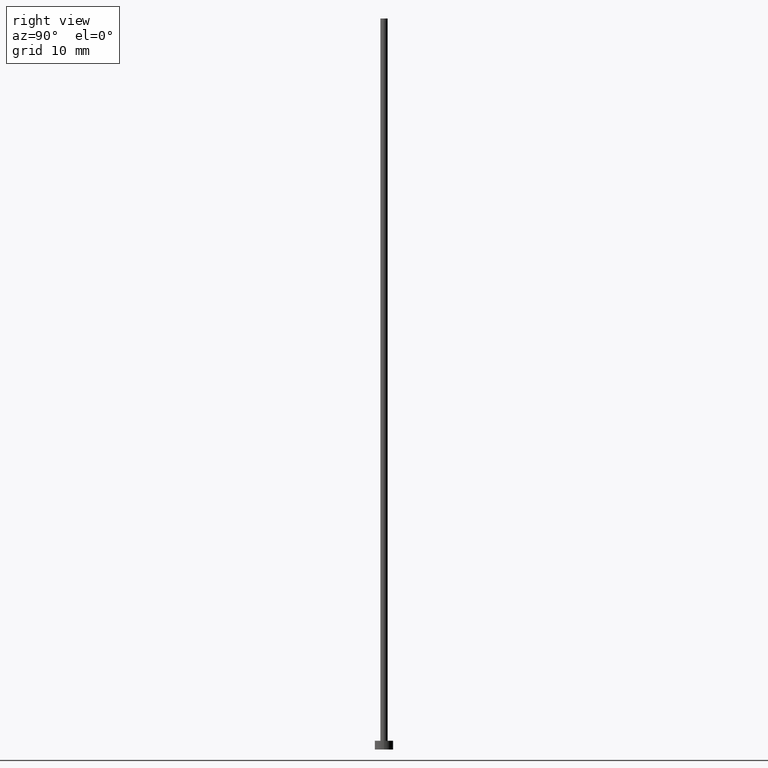
[diagram: clean part render]
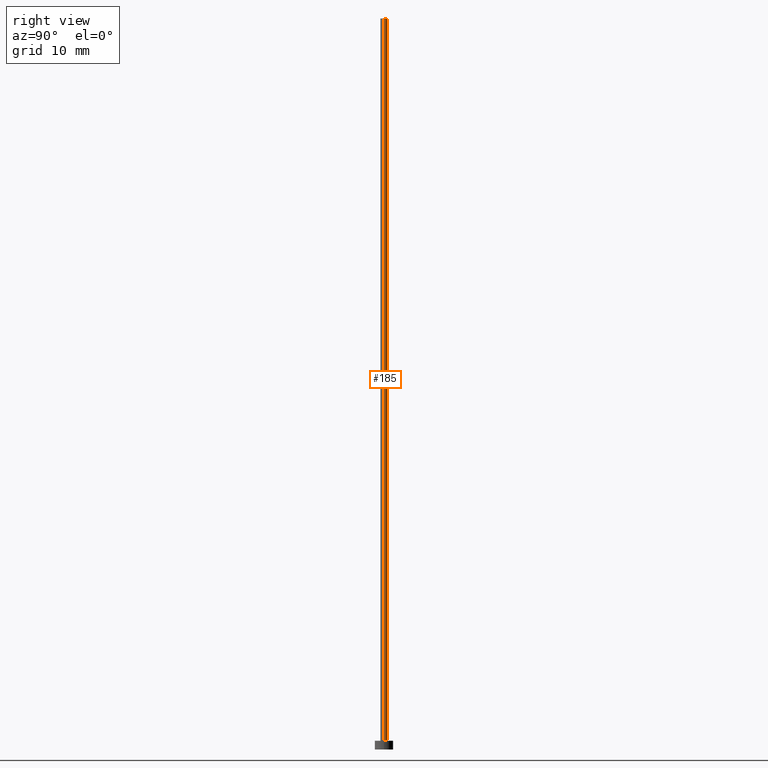
[diagram: same view with one face highlighted and labeled with its STEP entity id]
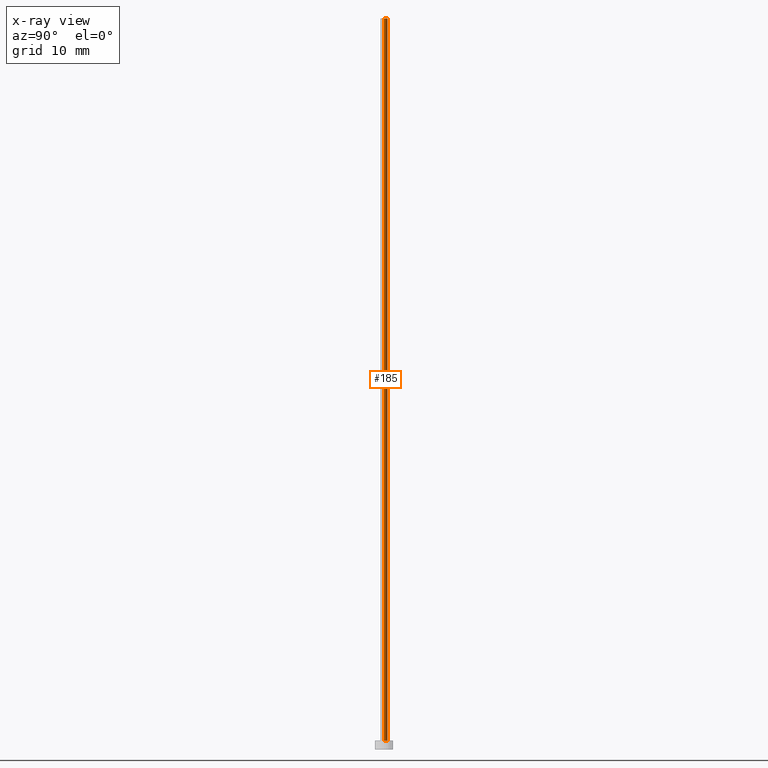
[diagram: x-ray of the same camera — body ghosted, the highlighted face saturated]
A machine part, right view. The second image highlights one B-rep face of the part: STEP entity #185.
The next image is the same camera in x-ray: the body ghosted, the highlighted face saturated — about 0% of this face is hidden behind the body in this view.
In plain terms, the highlighted cylindrical surface (edge-blend (fillet) strip) has radius 0.5 mm, axis along (-0, -0, -1).
Its self-contained STEP definition (entity closure, byte-faithful):
#2 = EDGE_CURVE ( 'NONE', #156, #240, #200, .T. ) ;
#3 = VERTEX_POINT ( 'NONE', #22 ) ;
#9 = AXIS2_PLACEMENT_3D ( 'NONE', #12, #166, #163 ) ;
#10 = DIRECTION ( 'NONE',  ( -1.000000000000000000, 0.000000000000000000, 0.000000000000000000 ) ) ;
#11 = CARTESIAN_POINT ( 'NONE',  ( 0.000000000000000000, 0.000000000000000000, 100.0000000000000000 ) ) ;
#12 = CARTESIAN_POINT ( 'NONE',  ( 0.000000000000000000, 0.000000000000000000, 100.0000000000000000 ) ) ;
#13 = CIRCLE ( 'NONE', #150, 0.5000000000000000000 ) ;
#22 = CARTESIAN_POINT ( 'NONE',  ( -0.5000000000000000000, 0.000000000000000000, 100.0000000000000000 ) ) ;
#31 = DIRECTION ( 'NONE',  ( 0.000000000000000000, 0.000000000000000000, 1.000000000000000000 ) ) ;
#40 = EDGE_CURVE ( 'NONE', #156, #3, #115, .T. ) ;
#54 = CYLINDRICAL_SURFACE ( 'NONE', #108, 0.5000000000000000000 ) ;
#67 = EDGE_CURVE ( 'NONE', #240, #215, #13, .T. ) ;
#73 = CARTESIAN_POINT ( 'NONE',  ( 0.5000000000000000000, 6.123233995736766036E-17, 1.199999999999999956 ) ) ;
#75 = VECTOR ( 'NONE', #183, 1000.000000000000000 ) ;
#88 = DIRECTION ( 'NONE',  ( 1.000000000000000000, 0.000000000000000000, 0.000000000000000000 ) ) ;
#105 = CARTESIAN_POINT ( 'NONE',  ( -0.5000000000000000000, 0.000000000000000000, 100.0000000000000000 ) ) ;
#108 = AXIS2_PLACEMENT_3D ( 'NONE', #11, #186, #10 ) ;
#115 = CIRCLE ( 'NONE', #9, 0.5000000000000000000 ) ;
#122 = EDGE_LOOP ( 'NONE', ( #218, #139, #237, #177 ) ) ;
#135 = CARTESIAN_POINT ( 'NONE',  ( 0.5000000000000000000, 6.123233995736766036E-17, 100.0000000000000000 ) ) ;
#139 = ORIENTED_EDGE ( 'NONE', *, *, #2, .T. ) ;
#143 = CARTESIAN_POINT ( 'NONE',  ( -0.5000000000000000000, 0.000000000000000000, 1.199999999999999956 ) ) ;
#150 = AXIS2_PLACEMENT_3D ( 'NONE', #180, #31, #88 ) ;
#155 = EDGE_CURVE ( 'NONE', #3, #215, #224, .T. ) ;
#156 = VERTEX_POINT ( 'NONE', #184 ) ;
#163 = DIRECTION ( 'NONE',  ( 1.000000000000000000, 0.000000000000000000, 0.000000000000000000 ) ) ;
#166 = DIRECTION ( 'NONE',  ( 0.000000000000000000, 0.000000000000000000, 1.000000000000000000 ) ) ;
#177 = ORIENTED_EDGE ( 'NONE', *, *, #155, .F. ) ;
#180 = CARTESIAN_POINT ( 'NONE',  ( 0.000000000000000000, 0.000000000000000000, 1.199999999999999956 ) ) ;
#183 = DIRECTION ( 'NONE',  ( -0.000000000000000000, -0.000000000000000000, -1.000000000000000000 ) ) ;
#184 = CARTESIAN_POINT ( 'NONE',  ( 0.5000000000000000000, 6.123233995736766036E-17, 100.0000000000000000 ) ) ;
#185 = ADVANCED_FACE ( 'NONE', ( #245 ), #54, .T. ) ;
#186 = DIRECTION ( 'NONE',  ( -0.000000000000000000, -0.000000000000000000, -1.000000000000000000 ) ) ;
#199 = VECTOR ( 'NONE', #254, 1000.000000000000000 ) ;
#200 = LINE ( 'NONE', #135, #199 ) ;
#215 = VERTEX_POINT ( 'NONE', #143 ) ;
#218 = ORIENTED_EDGE ( 'NONE', *, *, #40, .F. ) ;
#224 = LINE ( 'NONE', #105, #75 ) ;
#237 = ORIENTED_EDGE ( 'NONE', *, *, #67, .T. ) ;
#240 = VERTEX_POINT ( 'NONE', #73 ) ;
#245 = FACE_OUTER_BOUND ( 'NONE', #122, .T. ) ;
#254 = DIRECTION ( 'NONE',  ( -0.000000000000000000, -0.000000000000000000, -1.000000000000000000 ) ) ;